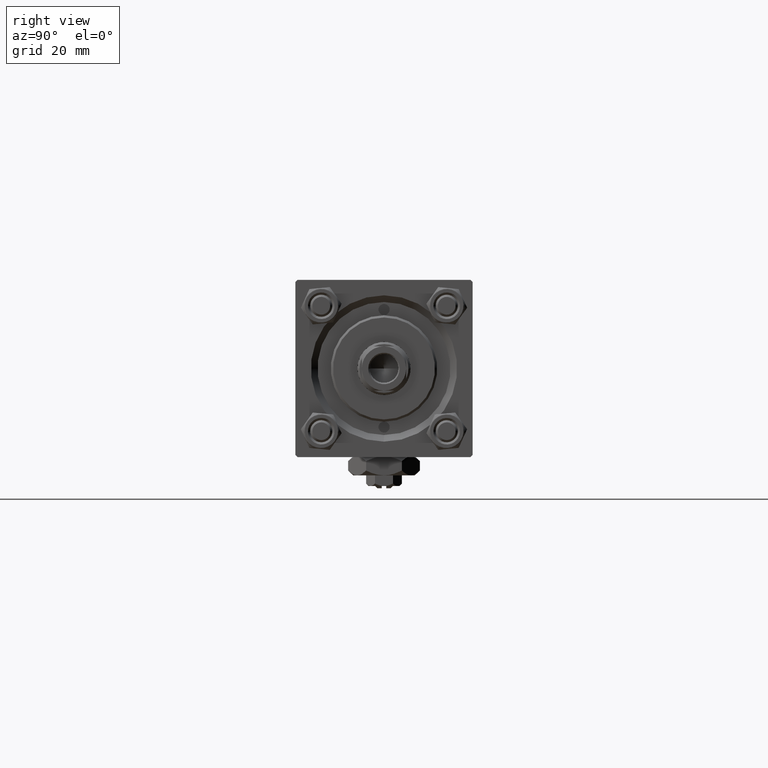
[diagram: clean part render]
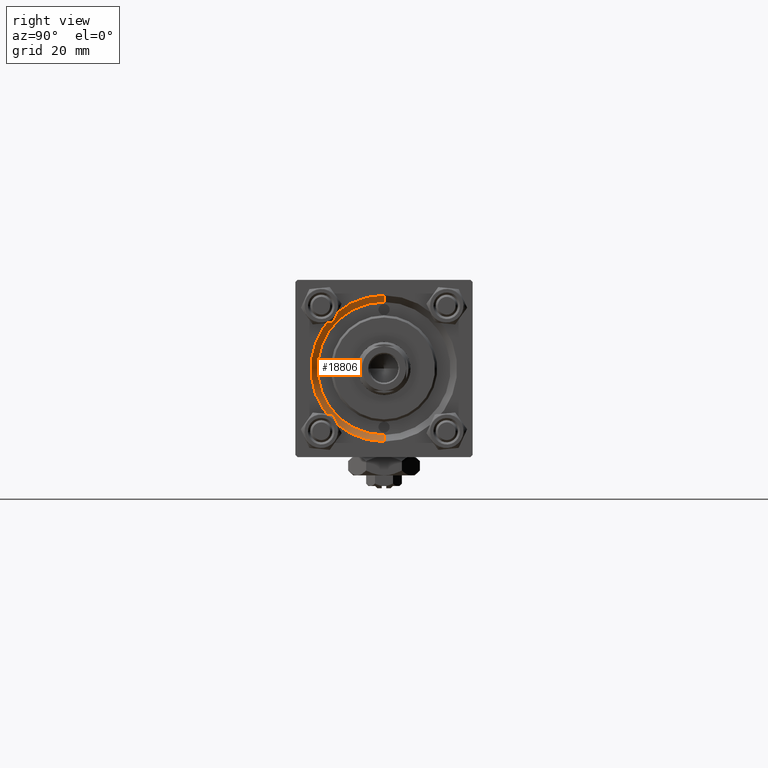
[diagram: same view with one face highlighted and labeled with its STEP entity id]
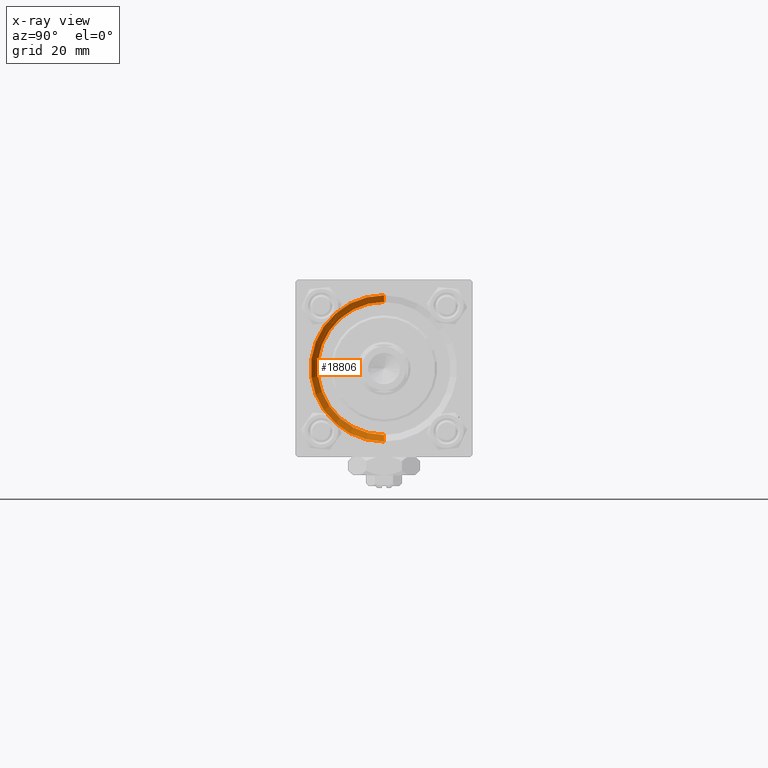
[diagram: x-ray of the same camera — body ghosted, the highlighted face saturated]
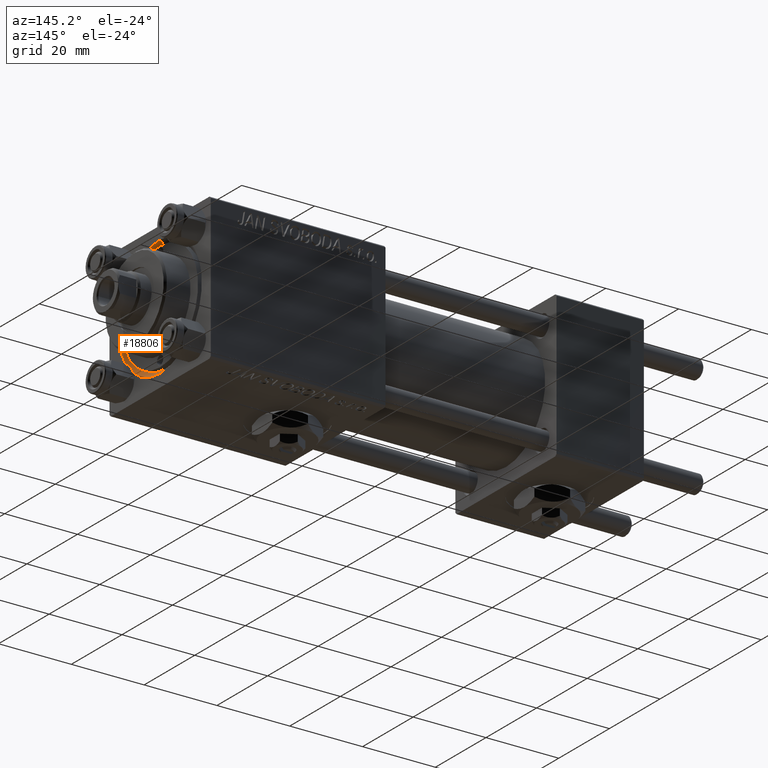
[diagram: same view with one face highlighted and labeled with its STEP entity id]
A machine part, right view. The second image highlights one B-rep face of the part: STEP entity #18806.
The next image is the same camera in x-ray: the body ghosted, the highlighted face saturated — about 0% of this face is hidden behind the body in this view.
A second angle (auxiliary view) of the same face is appended — the face is thin or edge-on in the first view.
In plain terms, the highlighted conical surface has half-angle 45 deg.
Its self-contained STEP definition (entity closure, byte-faithful):
#467 = CARTESIAN_POINT ( 'NONE',  ( 117.5000000000000000, 1.836970198721029589E-15, 15.00000000000000000 ) ) ;
#2973 = CONICAL_SURFACE ( 'NONE', #39870, 15.00000000000000000, 0.7853981633974482790 ) ;
#3423 = DIRECTION ( 'NONE',  ( 0.7071067811865474617, 8.659560562354932858E-17, 0.7071067811865474617 ) ) ;
#5726 = VERTEX_POINT ( 'NONE', #23004 ) ;
#8466 = EDGE_CURVE ( 'NONE', #12598, #5726, #30309, .T. ) ;
#9837 = DIRECTION ( 'NONE',  ( 0.000000000000000000, 0.000000000000000000, -1.000000000000000000 ) ) ;
#10892 = VERTEX_POINT ( 'NONE', #13575 ) ;
#11469 = DIRECTION ( 'NONE',  ( 0.000000000000000000, 0.000000000000000000, 1.000000000000000000 ) ) ;
#12065 = CARTESIAN_POINT ( 'NONE',  ( 117.5000000000000000, 1.836970198721029589E-15, 15.00000000000000000 ) ) ;
#12208 = VECTOR ( 'NONE', #3423, 1000.000000000000114 ) ;
#12501 = CARTESIAN_POINT ( 'NONE',  ( 119.0000000000000142, 0.000000000000000000, 0.000000000000000000 ) ) ;
#12598 = VERTEX_POINT ( 'NONE', #467 ) ;
#13575 = CARTESIAN_POINT ( 'NONE',  ( 119.0000000000000142, 2.020667218593134678E-15, 16.50000000000001421 ) ) ;
#14294 = DIRECTION ( 'NONE',  ( 1.000000000000000000, 0.000000000000000000, 0.000000000000000000 ) ) ;
#15915 = EDGE_CURVE ( 'NONE', #5726, #35125, #26901, .T. ) ;
#18806 = ADVANCED_FACE ( 'NONE', ( #49512 ), #2973, .F. ) ;
#20970 = EDGE_LOOP ( 'NONE', ( #23589, #31970, #40895, #22788 ) ) ;
#21409 = AXIS2_PLACEMENT_3D ( 'NONE', #12501, #29304, #44566 ) ;
#22159 = VECTOR ( 'NONE', #42157, 1000.000000000000114 ) ;
#22761 = AXIS2_PLACEMENT_3D ( 'NONE', #30922, #42997, #11469 ) ;
#22788 = ORIENTED_EDGE ( 'NONE', *, *, #15915, .F. ) ;
#23004 = CARTESIAN_POINT ( 'NONE',  ( 117.5000000000000000, 0.000000000000000000, -15.00000000000000000 ) ) ;
#23589 = ORIENTED_EDGE ( 'NONE', *, *, #8466, .F. ) ;
#25333 = CARTESIAN_POINT ( 'NONE',  ( 117.5000000000000000, 0.000000000000000000, 0.000000000000000000 ) ) ;
#26901 = LINE ( 'NONE', #42926, #22159 ) ;
#29304 = DIRECTION ( 'NONE',  ( -1.000000000000000000, -0.000000000000000000, -0.000000000000000000 ) ) ;
#30309 = CIRCLE ( 'NONE', #22761, 15.00000000000000000 ) ;
#30628 = CIRCLE ( 'NONE', #21409, 16.50000000000001421 ) ;
#30922 = CARTESIAN_POINT ( 'NONE',  ( 117.5000000000000000, 0.000000000000000000, 0.000000000000000000 ) ) ;
#31970 = ORIENTED_EDGE ( 'NONE', *, *, #48354, .T. ) ;
#35125 = VERTEX_POINT ( 'NONE', #48230 ) ;
#39870 = AXIS2_PLACEMENT_3D ( 'NONE', #25333, #14294, #9837 ) ;
#40895 = ORIENTED_EDGE ( 'NONE', *, *, #43756, .F. ) ;
#42157 = DIRECTION ( 'NONE',  ( 0.7071067811865474617, 0.000000000000000000, -0.7071067811865474617 ) ) ;
#42926 = CARTESIAN_POINT ( 'NONE',  ( 117.5000000000000000, 0.000000000000000000, -15.00000000000000000 ) ) ;
#42997 = DIRECTION ( 'NONE',  ( 1.000000000000000000, 0.000000000000000000, 0.000000000000000000 ) ) ;
#43756 = EDGE_CURVE ( 'NONE', #35125, #10892, #30628, .T. ) ;
#44566 = DIRECTION ( 'NONE',  ( 0.000000000000000000, 0.000000000000000000, 1.000000000000000000 ) ) ;
#48230 = CARTESIAN_POINT ( 'NONE',  ( 119.0000000000000142, 0.000000000000000000, -16.50000000000001421 ) ) ;
#48354 = EDGE_CURVE ( 'NONE', #12598, #10892, #50982, .T. ) ;
#49512 = FACE_OUTER_BOUND ( 'NONE', #20970, .T. ) ;
#50982 = LINE ( 'NONE', #12065, #12208 ) ;